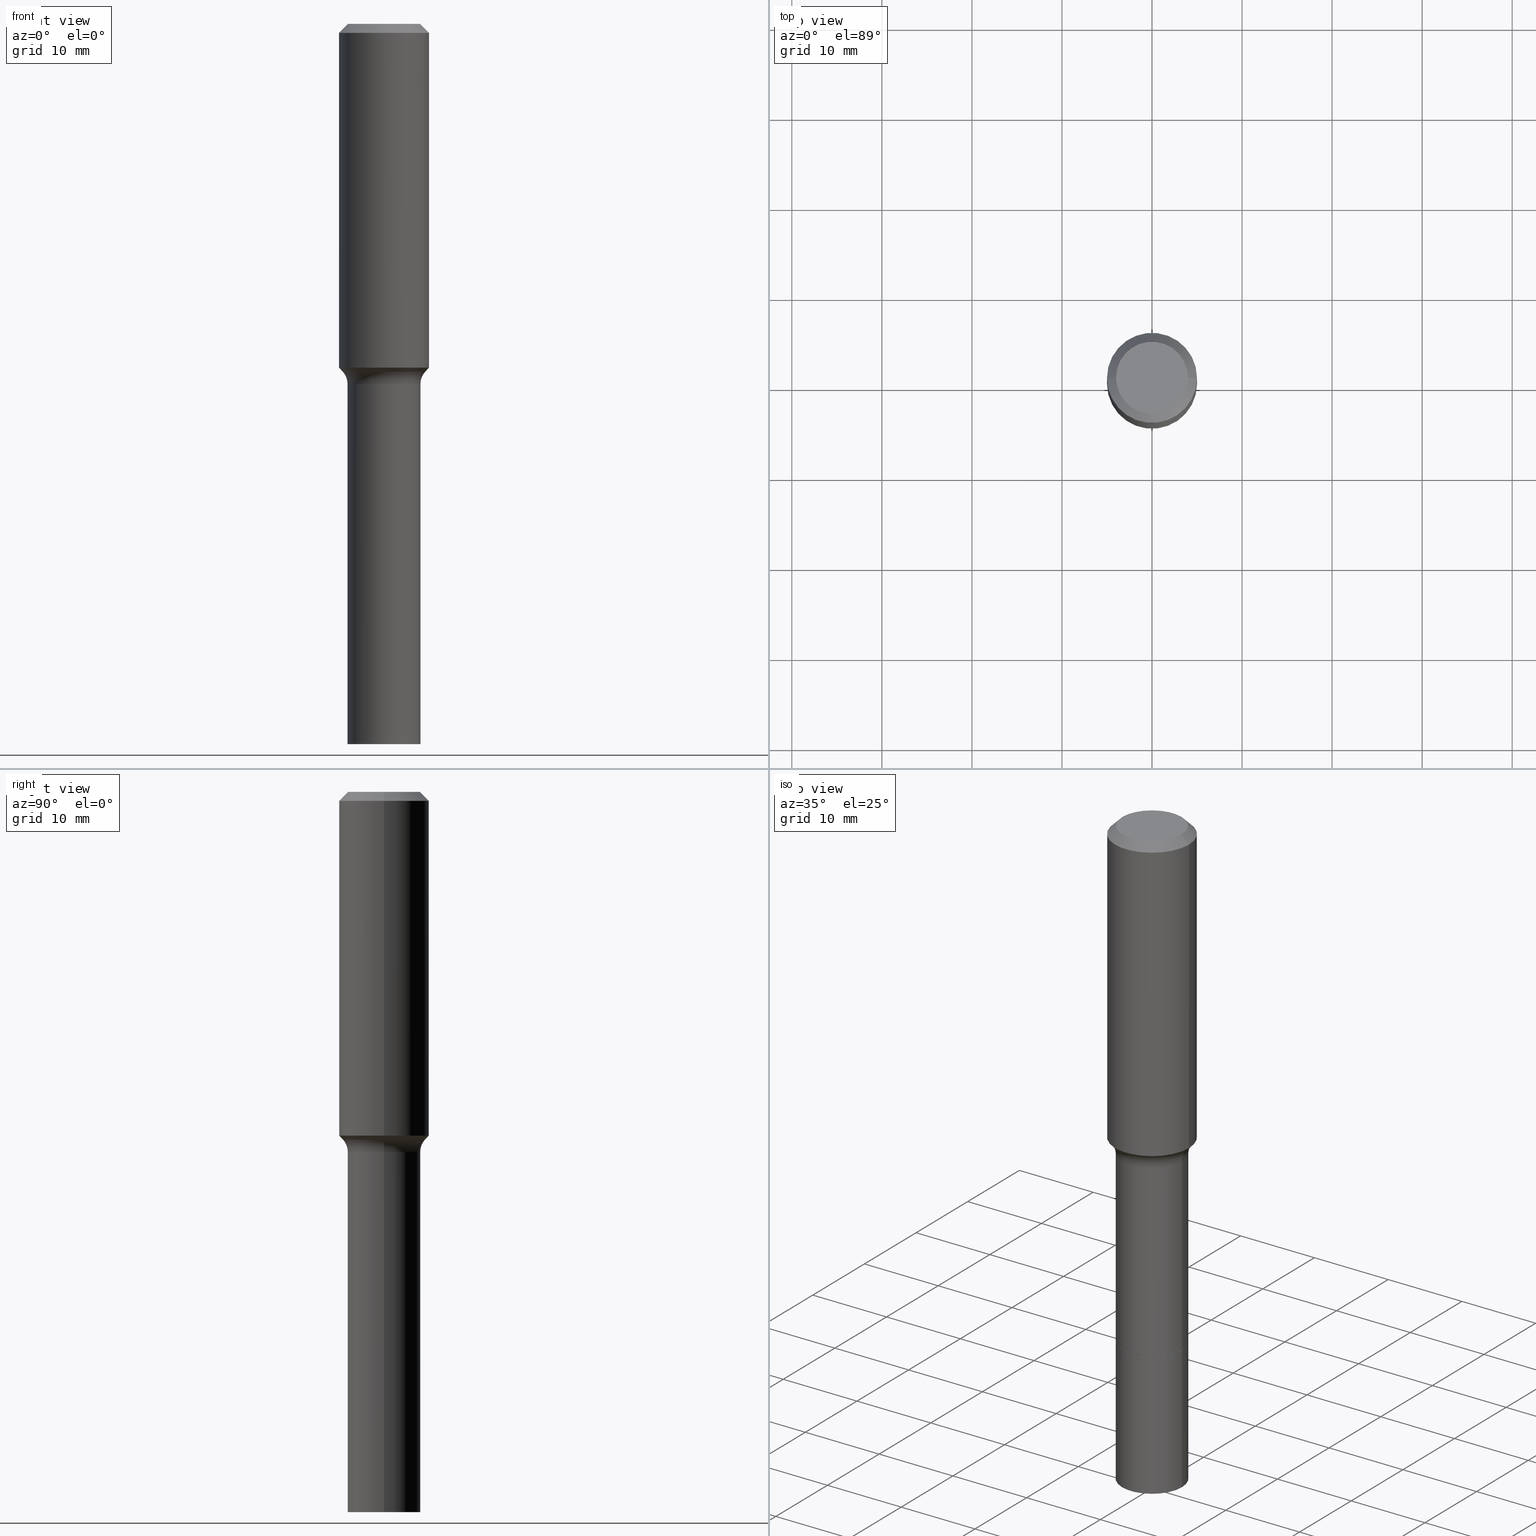
[diagram: canonical four-view strip — front | top / right | iso, engineering-drawing reading convention]
A machine part, canonical four-view strip (front | top / right | iso — engineering-drawing reading convention). The complete STEP part file that produces these views, byte-faithful:
ISO-10303-21;
HEADER;
FILE_DESCRIPTION (( 'STEP AP203' ),
    '1' );
FILE_NAME ('67128.STEP',
    '2025-04-01T15:28:36',
    ( '' ),
    ( '' ),
    'SwSTEP 2.0',
    'SolidWorks 2024',
    '' );
FILE_SCHEMA (( 'CONFIG_CONTROL_DESIGN' ));
ENDSEC;

DATA;
#1 = CARTESIAN_POINT ( 'NONE',  ( 0.1809417038704663749, -6.570700917324457435E-15, -1.520040131195000255 ) ) ;
#2 = CIRCLE ( 'NONE', #409, 0.1594500000000000361 ) ;
#3 = DIRECTION ( 'NONE',  ( 1.000000000000000000, -6.982962677686266711E-15, 0.000000000000000000 ) ) ;
#4 = EDGE_CURVE ( 'NONE', #18, #330, #482, .T. ) ;
#5 = LINE ( 'NONE', #479, #198 ) ;
#6 = DIRECTION ( 'NONE',  ( -2.445468806185136597E-29, 3.491481338843145583E-15, 1.000000000000000000 ) ) ;
#7 = APPLICATION_PROTOCOL_DEFINITION ( 'international standard', 'config_control_design', 1994, #406 ) ;
#8 = ORIENTED_EDGE ( 'NONE', *, *, #487, .T. ) ;
#9 = AXIS2_PLACEMENT_3D ( 'NONE', #69, #435, #391 ) ;
#10 = VECTOR ( 'NONE', #290, 39.37007874015748143 ) ;
#11 = DIRECTION ( 'NONE',  ( 0.6819983600624959230, -2.208861293262449376E-15, 0.7313537016191729023 ) ) ;
#12 = CIRCLE ( 'NONE', #248, 0.1809417038704664582 ) ;
#13 = CARTESIAN_POINT ( 'NONE',  ( 0.1594500000000000639, -9.790113674116178555E-15, -2.485100000000000087 ) ) ;
#14 = FACE_OUTER_BOUND ( 'NONE', #353, .T. ) ;
#15 = VERTEX_POINT ( 'NONE', #518 ) ;
#16 = LINE ( 'NONE', #374, #241 ) ;
#17 = CC_DESIGN_SECURITY_CLASSIFICATION ( #104, ( #268 ) ) ;
#18 = VERTEX_POINT ( 'NONE', #400 ) ;
#19 = CLOSED_SHELL ( 'NONE', ( #336, #244, #316, #380, #70, #223, #220, #356, #114, #378, #415, #367, #392, #464 ) ) ;
#20 = APPROVAL ( #421, 'UNSPECIFIED' ) ;
#21 = ORIENTED_EDGE ( 'NONE', *, *, #253, .F. ) ;
#22 = AXIS2_PLACEMENT_3D ( 'NONE', #446, #370, #46 ) ;
#23 = ORIENTED_EDGE ( 'NONE', *, *, #274, .F. ) ;
#24 = CC_DESIGN_APPROVAL ( #263, ( #104 ) ) ;
#25 = ORIENTED_EDGE ( 'NONE', *, *, #36, .F. ) ;
#26 = VERTEX_POINT ( 'NONE', #476 ) ;
#27 = EDGE_CURVE ( 'NONE', #89, #18, #254, .T. ) ;
#28 = CALENDAR_DATE ( 2025, 1, 4 ) ;
#29 = DIRECTION ( 'NONE',  ( -2.445468806185136877E-29, 3.491481338843145188E-15, 1.000000000000000000 ) ) ;
#30 = DIRECTION ( 'NONE',  ( -1.000000000000000000, 6.982962677686265922E-15, 0.000000000000000000 ) ) ;
#31 = PERSON_AND_ORGANIZATION_ROLE ( 'creator' ) ;
#32 = ORIENTED_EDGE ( 'NONE', *, *, #373, .T. ) ;
#33 = DIRECTION ( 'NONE',  ( 1.000000000000000000, -6.982962677686265133E-15, 0.000000000000000000 ) ) ;
#34 = TOROIDAL_SURFACE ( 'NONE', #393, 0.2394499999999999129, 0.07999999999999993228 ) ;
#35 = CIRCLE ( 'NONE', #9, 0.1574800000000000089 ) ;
#36 = EDGE_CURVE ( 'NONE', #330, #18, #56, .T. ) ;
#37 = CIRCLE ( 'NONE', #322, 0.07999999999999993228 ) ;
#38 = CARTESIAN_POINT ( 'NONE',  ( 3.850635182219116347E-29, -5.497686516142417553E-15, -1.574600000000000222 ) ) ;
#39 = DIRECTION ( 'NONE',  ( -2.445468806185136597E-29, 3.491481338843145583E-15, 1.000000000000000000 ) ) ;
#40 = DIRECTION ( 'NONE',  ( 1.000000000000000000, -6.982962677686267499E-15, 0.000000000000000000 ) ) ;
#41 = DIRECTION ( 'NONE',  ( -2.445468806185136597E-29, 3.491481338843145583E-15, 1.000000000000000000 ) ) ;
#42 = DIRECTION ( 'NONE',  ( -2.445468806185136597E-29, 3.491481338843145583E-15, 1.000000000000000000 ) ) ;
#43 = EDGE_CURVE ( 'NONE', #61, #251, #132, .T. ) ;
#44 = ORGANIZATION ( 'UNSPECIFIED', 'UNSPECIFIED', '' ) ;
#45 = CARTESIAN_POINT ( 'NONE',  ( 0.1809417038704664582, -6.570700917324458224E-15, -1.520040131195000255 ) ) ;
#46 = DIRECTION ( 'NONE',  ( -1.000000000000000000, 6.982962677686265922E-15, -4.876176775795935793E-29 ) ) ;
#47 = ORIENTED_EDGE ( 'NONE', *, *, #324, .F. ) ;
#48 = DIRECTION ( 'NONE',  ( -2.445468806185136597E-29, 3.491481338843145583E-15, 1.000000000000000000 ) ) ;
#49 = LOCAL_TIME ( 11, 28, 36.00000000000000000, #496 ) ;
#50 = DIRECTION ( 'NONE',  ( 1.000000000000000000, -6.982962677686269866E-15, 0.000000000000000000 ) ) ;
#51 = ORIENTED_EDGE ( 'NONE', *, *, #76, .F. ) ;
#52 = CARTESIAN_POINT ( 'NONE',  ( 0.000000000000000000, 0.000000000000000000, 0.000000000000000000 ) ) ;
#53 = DIRECTION ( 'NONE',  ( 1.000000000000000000, -6.982962677686266711E-15, 4.876176775795935793E-29 ) ) ;
#54 = VERTEX_POINT ( 'NONE', #266 ) ;
#55 = PERSON_AND_ORGANIZATION ( #180, #44 ) ;
#56 = CIRCLE ( 'NONE', #138, 0.1594499999999999251 ) ;
#57 = CONICAL_SURFACE ( 'NONE', #295, 0.1809417038704664582, 0.7504915783575581978 ) ;
#58 = ORIENTED_EDGE ( 'NONE', *, *, #274, .T. ) ;
#59 = ORIENTED_EDGE ( 'NONE', *, *, #118, .F. ) ;
#60 = EDGE_CURVE ( 'NONE', #89, #503, #12, .T. ) ;
#61 = VERTEX_POINT ( 'NONE', #434 ) ;
#62 = AXIS2_PLACEMENT_3D ( 'NONE', #414, #354, #352 ) ;
#63 = ORIENTED_EDGE ( 'NONE', *, *, #118, .T. ) ;
#64 = AXIS2_PLACEMENT_3D ( 'NONE', #362, #317, #448 ) ;
#65 = DIRECTION ( 'NONE',  ( -1.000000000000000000, 7.105427357601005014E-15, 0.000000000000000000 ) ) ;
#66 = CARTESIAN_POINT ( 'NONE',  ( 0.000000000000000000, 0.000000000000000000, 0.000000000000000000 ) ) ;
#67 = APPROVAL_STATUS ( 'not_yet_approved' ) ;
#68 = DIRECTION ( 'NONE',  ( 1.000000000000000000, -6.982962677686269866E-15, 0.000000000000000000 ) ) ;
#69 = CARTESIAN_POINT ( 'NONE',  ( -9.427742298522567634E-47, 1.346031739168368355E-32, 3.855188123715870730E-18 ) ) ;
#70 = ADVANCED_FACE ( 'NONE', ( #344 ), #34, .F. ) ;
#71 = PERSON_AND_ORGANIZATION ( #180, #44 ) ;
#72 = DIRECTION ( 'NONE',  ( -2.445468806185136597E-29, 3.491481338843145583E-15, 1.000000000000000000 ) ) ;
#73 = CARTESIAN_POINT ( 'NONE',  ( 9.627810689950945397E-31, -1.374596203102555315E-16, -0.03937000000000025896 ) ) ;
#74 = DIRECTION ( 'NONE',  ( 1.000000000000000000, -6.982962677686267499E-15, 0.000000000000000000 ) ) ;
#75 = DIRECTION ( 'NONE',  ( -0.6819983600624959230, 7.399397606724277110E-15, 0.7313537016191729023 ) ) ;
#76 = EDGE_CURVE ( 'NONE', #292, #330, #465, .T. ) ;
#77 = DIRECTION ( 'NONE',  ( 2.438088387897960049E-29, -3.491481338843145188E-15, -1.000000000000000000 ) ) ;
#78 = DESIGN_CONTEXT ( 'detailed design', #195, 'design' ) ;
#79 = CARTESIAN_POINT ( 'NONE',  ( 0.1589500000000000079, -9.788367933446756263E-15, -2.485600000000000254 ) ) ;
#80 = CC_DESIGN_PERSON_AND_ORGANIZATION_ASSIGNMENT ( #512, #328, ( #268 ) ) ;
#81 = DIRECTION ( 'NONE',  ( -0.7071067811865453523, 2.468850131082234184E-15, -0.7071067811865496822 ) ) ;
#82 = LINE ( 'NONE', #108, #286 ) ;
#83 = CC_DESIGN_PERSON_AND_ORGANIZATION_ASSIGNMENT ( #134, #429, ( #162 ) ) ;
#84 = CARTESIAN_POINT ( 'NONE',  ( 0.000000000000000000, 0.000000000000000000, 0.000000000000000000 ) ) ;
#85 = EDGE_LOOP ( 'NONE', ( #260, #298, #485, #462 ) ) ;
#86 = DIRECTION ( 'NONE',  ( -1.000000000000000000, 6.982962677686265922E-15, 0.000000000000000000 ) ) ;
#87 = DIRECTION ( 'NONE',  ( -2.445468806185136597E-29, 3.491481338843145583E-15, 1.000000000000000000 ) ) ;
#88 = ORIENTED_EDGE ( 'NONE', *, *, #412, .F. ) ;
#89 = VERTEX_POINT ( 'NONE', #96 ) ;
#90 = APPROVAL_DATE_TIME ( #127, #263 ) ;
#91 = VECTOR ( 'NONE', #143, 39.37007874015748143 ) ;
#92 = AXIS2_PLACEMENT_3D ( 'NONE', #287, #455, #211 ) ;
#93 = ORIENTED_EDGE ( 'NONE', *, *, #154, .F. ) ;
#94 = ORIENTED_EDGE ( 'NONE', *, *, #154, .T. ) ;
#95 = EDGE_LOOP ( 'NONE', ( #379, #294, #288, #398 ) ) ;
#96 = CARTESIAN_POINT ( 'NONE',  ( -0.1809417038704663749, -4.021523619547879417E-15, -1.520040131195000255 ) ) ;
#97 = CARTESIAN_POINT ( 'NONE',  ( 6.078457264653775760E-29, -8.678426015828524062E-15, -2.485600000000000254 ) ) ;
#98 = CC_DESIGN_DATE_AND_TIME_ASSIGNMENT ( #513, #359, ( #332 ) ) ;
#99 = CARTESIAN_POINT ( 'NONE',  ( 9.627810689950945397E-31, -1.374596203102555315E-16, -0.03937000000000025896 ) ) ;
#100 = DIRECTION ( 'NONE',  ( -2.445468806185136597E-29, 3.491481338843145583E-15, 1.000000000000000000 ) ) ;
#101 = CARTESIAN_POINT ( 'NONE',  ( -0.2394499999999999129, -3.796291935364858080E-15, -1.574600000000000222 ) ) ;
#102 = CARTESIAN_POINT ( 'NONE',  ( 6.078457264653775760E-29, -8.678426015828524062E-15, -2.485600000000000254 ) ) ;
#103 = EDGE_LOOP ( 'NONE', ( #337, #212, #94, #375 ) ) ;
#104 = SECURITY_CLASSIFICATION ( '', '', #210 ) ;
#105 = DIRECTION ( 'NONE',  ( 1.000000000000000000, -6.982962677686266711E-15, 4.876176775795935793E-29 ) ) ;
#106 = DIRECTION ( 'NONE',  ( -2.445468806185136597E-29, 3.491481338843145583E-15, 1.000000000000000000 ) ) ;
#107 = DIRECTION ( 'NONE',  ( -0.7071067811864509833, 7.493145998870005484E-15, 0.7071067811866440511 ) ) ;
#108 = CARTESIAN_POINT ( 'NONE',  ( -0.1968500000000001082, 1.398703375343757985E-15, -9.682923725166787881E-30 ) ) ;
#109 =( LENGTH_UNIT ( ) NAMED_UNIT ( * ) SI_UNIT ( $, .METRE. ) );
#110 = DIRECTION ( 'NONE',  ( -2.445468806185136597E-29, 3.491481338843145583E-15, 1.000000000000000000 ) ) ;
#111 = AXIS2_PLACEMENT_3D ( 'NONE', #514, #141, #307 ) ;
#112 = AXIS2_PLACEMENT_3D ( 'NONE', #267, #273, #33 ) ;
#113 = FACE_OUTER_BOUND ( 'NONE', #156, .T. ) ;
#114 = ADVANCED_FACE ( 'NONE', ( #304 ), #256, .T. ) ;
#115 = CARTESIAN_POINT ( 'NONE',  ( 0.000000000000000000, 0.000000000000000000, 0.000000000000000000 ) ) ;
#116 = DIRECTION ( 'NONE',  ( 2.445468806185136597E-29, -3.491481338843145583E-15, -1.000000000000000000 ) ) ;
#117 = DIRECTION ( 'NONE',  ( -2.445468806185136597E-29, 3.491481338843145583E-15, 1.000000000000000000 ) ) ;
#118 = EDGE_CURVE ( 'NONE', #54, #231, #347, .T. ) ;
#119 = AXIS2_PLACEMENT_3D ( 'NONE', #397, #39, #442 ) ;
#120 = AXIS2_PLACEMENT_3D ( 'NONE', #481, #6, #3 ) ;
#121 = DIRECTION ( 'NONE',  ( 1.000000000000000000, -6.982962677686266711E-15, 4.883557194083113462E-29 ) ) ;
#122 = ORIENTED_EDGE ( 'NONE', *, *, #76, .T. ) ;
#123 = CARTESIAN_POINT ( 'NONE',  ( -0.1594500000000000361, -7.545465623659043664E-15, -2.485600000000000254 ) ) ;
#124 = EDGE_LOOP ( 'NONE', ( #47, #377, #122, #381 ) ) ;
#125 = VECTOR ( 'NONE', #11, 39.37007874015748143 ) ;
#126 = ORIENTED_EDGE ( 'NONE', *, *, #501, .T. ) ;
#127 = DATE_AND_TIME ( #209, #467 ) ;
#128 = CIRCLE ( 'NONE', #436, 0.1594500000000000639 ) ;
#129 = EDGE_LOOP ( 'NONE', ( #21, #59 ) ) ;
#130 = ORIENTED_EDGE ( 'NONE', *, *, #192, .T. ) ;
#131 = APPROVAL_STATUS ( 'not_yet_approved' ) ;
#132 = LINE ( 'NONE', #136, #447 ) ;
#133 = CARTESIAN_POINT ( 'NONE',  ( 0.1594500000000000361, -9.791859414785599270E-15, -2.485600000000000254 ) ) ;
#134 = PERSON_AND_ORGANIZATION ( #180, #44 ) ;
#135 = CC_DESIGN_APPROVAL ( #289, ( #332 ) ) ;
#136 = CARTESIAN_POINT ( 'NONE',  ( 0.1968500000000001082, -1.374596203102542397E-15, 9.598753983154305062E-30 ) ) ;
#137 = CARTESIAN_POINT ( 'NONE',  ( 6.078457264653775760E-29, -8.678426015828524062E-15, -2.485600000000000254 ) ) ;
#138 = AXIS2_PLACEMENT_3D ( 'NONE', #38, #269, #437 ) ;
#139 = EDGE_CURVE ( 'NONE', #251, #186, #420, .T. ) ;
#140 = APPROVAL_ROLE ( '' ) ;
#141 = DIRECTION ( 'NONE',  ( -2.445468806185136597E-29, 3.491481338843145583E-15, 1.000000000000000000 ) ) ;
#142 = FACE_OUTER_BOUND ( 'NONE', #85, .T. ) ;
#143 = DIRECTION ( 'NONE',  ( -2.445468806185136877E-29, 3.491481338843145188E-15, 1.000000000000000000 ) ) ;
#144 = ADVANCED_FACE ( 'NONE', ( #227 ), #261, .T. ) ;
#145 = DIRECTION ( 'NONE',  ( 2.445468806185136597E-29, -3.491481338843145583E-15, -1.000000000000000000 ) ) ;
#146 = DIRECTION ( 'NONE',  ( -2.445468806185136597E-29, 3.491481338843145583E-15, 1.000000000000000000 ) ) ;
#147 = CARTESIAN_POINT ( 'NONE',  ( 7.702248551960706711E-29, -1.099676962482037231E-14, -3.149600000000000399 ) ) ;
#148 = AXIS2_PLACEMENT_3D ( 'NONE', #84, #278, #486 ) ;
#149 = PERSON_AND_ORGANIZATION ( #180, #44 ) ;
#150 = FACE_OUTER_BOUND ( 'NONE', #169, .T. ) ;
#151 = CC_DESIGN_DATE_AND_TIME_ASSIGNMENT ( #179, #425, ( #104 ) ) ;
#152 = CARTESIAN_POINT ( 'NONE',  ( 0.1594500000000000361, -9.791859414785599270E-15, -2.485600000000000254 ) ) ;
#153 = AXIS2_PLACEMENT_3D ( 'NONE', #407, #48, #484 ) ;
#154 = EDGE_CURVE ( 'NONE', #503, #330, #37, .T. ) ;
#155 = CARTESIAN_POINT ( 'NONE',  ( 0.1968500000000000250, -1.487948651171581601E-15, -0.03937000000000025896 ) ) ;
#156 = EDGE_LOOP ( 'NONE', ( #495, #327, #470, #499 ) ) ;
#157 = AXIS2_PLACEMENT_3D ( 'NONE', #99, #42, #441 ) ;
#158 = CIRCLE ( 'NONE', #111, 0.1968500000000001915 ) ;
#159 = CYLINDRICAL_SURFACE ( 'NONE', #219, 0.1594499999999999806 ) ;
#160 = ORIENTED_EDGE ( 'NONE', *, *, #324, .T. ) ;
#161 = LINE ( 'NONE', #155, #203 ) ;
#162 = PRODUCT ( '67128', '67128', '', ( #206 ) ) ;
#163 = EDGE_CURVE ( 'NONE', #61, #213, #158, .T. ) ;
#164 = FACE_OUTER_BOUND ( 'NONE', #103, .T. ) ;
#165 = ORIENTED_EDGE ( 'NONE', *, *, #277, .T. ) ;
#166 = LOCAL_TIME ( 11, 28, 36.00000000000000000, #229 ) ;
#167 = CALENDAR_DATE ( 2025, 1, 4 ) ;
#168 = LINE ( 'NONE', #123, #10 ) ;
#169 = EDGE_LOOP ( 'NONE', ( #384, #258, #204, #234 ) ) ;
#170 = APPROVAL_ROLE ( '' ) ;
#171 = EDGE_LOOP ( 'NONE', ( #58, #160, #25, #51 ) ) ;
#172 = EDGE_CURVE ( 'NONE', #460, #463, #461, .T. ) ;
#173 = PERSON_AND_ORGANIZATION_ROLE ( 'design_supplier' ) ;
#174 = ORIENTED_EDGE ( 'NONE', *, *, #192, .F. ) ;
#175 = AXIS2_PLACEMENT_3D ( 'NONE', #137, #194, #469 ) ;
#176 = ORIENTED_EDGE ( 'NONE', *, *, #214, .T. ) ;
#177 = EDGE_LOOP ( 'NONE', ( #456, #126, #366, #321 ) ) ;
#178 = DIRECTION ( 'NONE',  ( -2.445468806185136597E-29, 3.491481338843145583E-15, 1.000000000000000000 ) ) ;
#179 = DATE_AND_TIME ( #28, #474 ) ;
#180 = PERSON ( 'UNSPECIFIED', 'UNSPECIFIED', 'UNSPECIFIED', ('UNSPECIFIED'), ('UNSPECIFIED'), ('UNSPECIFIED') ) ;
#181 = VERTEX_POINT ( 'NONE', #152 ) ;
#182 = FACE_OUTER_BOUND ( 'NONE', #95, .T. ) ;
#183 = EDGE_CURVE ( 'NONE', #410, #186, #5, .T. ) ;
#184 = COORDINATED_UNIVERSAL_TIME_OFFSET ( 5, 0, .BEHIND. ) ;
#185 = APPROVAL_PERSON_ORGANIZATION ( #341, #289, #140 ) ;
#186 = VERTEX_POINT ( 'NONE', #318 ) ;
#187 = DIRECTION ( 'NONE',  ( -2.445468806185136877E-29, 3.491481338843145188E-15, 1.000000000000000000 ) ) ;
#188 = AXIS2_PLACEMENT_3D ( 'NONE', #430, #77, #264 ) ;
#189 = EDGE_CURVE ( 'NONE', #213, #186, #82, .T. ) ;
#190 = DIRECTION ( 'NONE',  ( 1.000000000000000000, -6.982962677686266711E-15, 4.883557194083113462E-29 ) ) ;
#191 = DIRECTION ( 'NONE',  ( -2.438088387897960049E-29, 3.491481338843145188E-15, 1.000000000000000000 ) ) ;
#192 = EDGE_CURVE ( 'NONE', #213, #61, #360, .T. ) ;
#193 = CARTESIAN_POINT ( 'NONE',  ( 0.1594499999999999806, -1.113433398957075208E-15, 7.775063869006620076E-30 ) ) ;
#194 = DIRECTION ( 'NONE',  ( -2.445468806185136597E-29, 3.491481338843145583E-15, 1.000000000000000000 ) ) ;
#195 = APPLICATION_CONTEXT ( 'configuration controlled 3d designs of mechanical parts and assemblies' ) ;
#196 = CARTESIAN_POINT ( 'NONE',  ( 0.2394499999999999129, -7.169756929314393625E-15, -1.574600000000000222 ) ) ;
#197 = CIRCLE ( 'NONE', #511, 0.1594500000000000361 ) ;
#198 = VECTOR ( 'NONE', #81, 39.37007874015748143 ) ;
#199 = PLANE ( 'NONE',  #22 ) ;
#200 =( CONVERSION_BASED_UNIT ( 'INCH', #208 ) LENGTH_UNIT ( ) NAMED_UNIT ( #217 ) );
#201 = CC_DESIGN_PERSON_AND_ORGANIZATION_ASSIGNMENT ( #388, #31, ( #332 ) ) ;
#202 = DIRECTION ( 'NONE',  ( -2.445468806185136877E-29, 3.491481338843145188E-15, 1.000000000000000000 ) ) ;
#203 = VECTOR ( 'NONE', #280, 39.37007874015748143 ) ;
#204 = ORIENTED_EDGE ( 'NONE', *, *, #139, .T. ) ;
#205 = FACE_OUTER_BOUND ( 'NONE', #124, .T. ) ;
#206 = MECHANICAL_CONTEXT ( 'NONE', #406, 'mechanical' ) ;
#207 = FACE_OUTER_BOUND ( 'NONE', #257, .T. ) ;
#208 = LENGTH_MEASURE_WITH_UNIT ( LENGTH_MEASURE( 0.02539999999999999897 ), #109 );
#209 = CALENDAR_DATE ( 2025, 1, 4 ) ;
#210 = SECURITY_CLASSIFICATION_LEVEL ( 'unclassified' ) ;
#211 = DIRECTION ( 'NONE',  ( 1.000000000000000000, -6.982962677686269866E-15, 0.000000000000000000 ) ) ;
#212 = ORIENTED_EDGE ( 'NONE', *, *, #452, .F. ) ;
#213 = VERTEX_POINT ( 'NONE', #365 ) ;
#214 = EDGE_CURVE ( 'NONE', #231, #292, #282, .T. ) ;
#215 = ORIENTED_EDGE ( 'NONE', *, *, #43, .F. ) ;
#216 = EDGE_LOOP ( 'NONE', ( #497, #130, #500, #371 ) ) ;
#217 = DIMENSIONAL_EXPONENTS ( 1.000000000000000000, 0.000000000000000000, 0.000000000000000000, 0.000000000000000000, 0.000000000000000000, 0.000000000000000000, 0.000000000000000000 ) ;
#218 = CIRCLE ( 'NONE', #119, 0.1968500000000000250 ) ;
#219 = AXIS2_PLACEMENT_3D ( 'NONE', #444, #323, #361 ) ;
#220 = ADVANCED_FACE ( 'NONE', ( #205 ), #159, .T. ) ;
#221 = ORIENTED_EDGE ( 'NONE', *, *, #60, .F. ) ;
#222 = ORIENTED_EDGE ( 'NONE', *, *, #27, .T. ) ;
#223 = ADVANCED_FACE ( 'NONE', ( #413 ), #242, .T. ) ;
#224 = FACE_OUTER_BOUND ( 'NONE', #177, .T. ) ;
#225 = AXIS2_PLACEMENT_3D ( 'NONE', #239, #405, #245 ) ;
#226 = DATE_AND_TIME ( #303, #166 ) ;
#227 = FACE_OUTER_BOUND ( 'NONE', #424, .T. ) ;
#228 = DIRECTION ( 'NONE',  ( 1.000000000000000000, -6.982962677686265922E-15, 4.876176775795935793E-29 ) ) ;
#229 = COORDINATED_UNIVERSAL_TIME_OFFSET ( 5, 0, .BEHIND. ) ;
#230 = CONICAL_SURFACE ( 'NONE', #92, 0.1589500000000000079, 0.7853981633973118326 ) ;
#231 = VERTEX_POINT ( 'NONE', #79 ) ;
#232 = LINE ( 'NONE', #504, #320 ) ;
#233 = CLOSED_SHELL ( 'NONE', ( #306, #144, #428, #297 ) ) ;
#234 = ORIENTED_EDGE ( 'NONE', *, *, #183, .F. ) ;
#235 = LINE ( 'NONE', #271, #445 ) ;
#236 = UNCERTAINTY_MEASURE_WITH_UNIT (LENGTH_MEASURE( 1.000000000000000082E-05 ), #200, 'distance_accuracy_value', 'NONE');
#237 = EDGE_LOOP ( 'NONE', ( #285, #63, #176, #88 ) ) ;
#238 = CYLINDRICAL_SURFACE ( 'NONE', #348, 0.1968500000000001082 ) ;
#239 = CARTESIAN_POINT ( 'NONE',  ( -9.427742298522567634E-47, 1.346031739168368355E-32, 3.855188123715870730E-18 ) ) ;
#240 = APPROVAL_PERSON_ORGANIZATION ( #149, #20, #170 ) ;
#241 = VECTOR ( 'NONE', #494, 39.37007874015748143 ) ;
#242 = CYLINDRICAL_SURFACE ( 'NONE', #148, 0.1594499999999999806 ) ;
#243 = DIRECTION ( 'NONE',  ( 0.7071067811864509833, -2.468850131081245741E-15, 0.7071067811866440511 ) ) ;
#244 = ADVANCED_FACE ( 'NONE', ( #150 ), #270, .T. ) ;
#245 = DIRECTION ( 'NONE',  ( 1.000000000000000000, -6.982962677686265922E-15, 4.876223630392693006E-29 ) ) ;
#246 = ORIENTED_EDGE ( 'NONE', *, *, #139, .F. ) ;
#247 = APPROVAL_PERSON_ORGANIZATION ( #71, #263, #300 ) ;
#248 = AXIS2_PLACEMENT_3D ( 'NONE', #272, #146, #40 ) ;
#249 = CYLINDRICAL_SURFACE ( 'NONE', #340, 0.1968500000000001082 ) ;
#250 = PLANE ( 'NONE',  #62 ) ;
#251 = VERTEX_POINT ( 'NONE', #449 ) ;
#252 = ORIENTED_EDGE ( 'NONE', *, *, #423, .T. ) ;
#253 = EDGE_CURVE ( 'NONE', #231, #54, #382, .T. ) ;
#254 = CIRCLE ( 'NONE', #475, 0.07999999999999993228 ) ;
#255 = AXIS2_PLACEMENT_3D ( 'NONE', #490, #87, #121 ) ;
#256 = CONICAL_SURFACE ( 'NONE', #396, 0.1809417038704664582, 0.7504915783575581978 ) ;
#257 = EDGE_LOOP ( 'NONE', ( #32, #458 ) ) ;
#258 = ORIENTED_EDGE ( 'NONE', *, *, #299, .T. ) ;
#259 = EDGE_CURVE ( 'NONE', #296, #410, #457, .T. ) ;
#260 = ORIENTED_EDGE ( 'NONE', *, *, #346, .F. ) ;
#261 = PLANE ( 'NONE',  #188 ) ;
#262 = DIRECTION ( 'NONE',  ( -2.445468806185136597E-29, 3.491481338843145583E-15, 1.000000000000000000 ) ) ;
#263 = APPROVAL ( #131, 'UNSPECIFIED' ) ;
#264 = DIRECTION ( 'NONE',  ( -1.000000000000000000, 6.982962677686265922E-15, -4.876176775795935793E-29 ) ) ;
#265 = LINE ( 'NONE', #133, #483 ) ;
#266 = CARTESIAN_POINT ( 'NONE',  ( -0.1589500000000000079, -7.546369110163733362E-15, -2.485600000000000254 ) ) ;
#267 = CARTESIAN_POINT ( 'NONE',  ( 6.078457264653775760E-29, -8.678426015828524062E-15, -2.485600000000000254 ) ) ;
#268 = PRODUCT_DEFINITION_FORMATION_WITH_SPECIFIED_SOURCE ( 'ANY', '', #162, .NOT_KNOWN. ) ;
#269 = DIRECTION ( 'NONE',  ( -2.445468806185136597E-29, 3.491481338843145583E-15, 1.000000000000000000 ) ) ;
#270 = CONICAL_SURFACE ( 'NONE', #411, 0.1968500000000000250, 0.7853981633974452814 ) ;
#271 = CARTESIAN_POINT ( 'NONE',  ( -0.1589500000000000079, -7.549018337337845352E-15, -2.485600000000000254 ) ) ;
#272 = CARTESIAN_POINT ( 'NONE',  ( 3.717210724986936016E-29, -5.307191752360030282E-15, -1.520040131195000255 ) ) ;
#273 = DIRECTION ( 'NONE',  ( -2.445468806185136597E-29, 3.491481338843145583E-15, 1.000000000000000000 ) ) ;
#274 = EDGE_CURVE ( 'NONE', #292, #15, #291, .T. ) ;
#275 = CARTESIAN_POINT ( 'NONE',  ( 0.1589500000000000079, -9.788367933446756263E-15, -2.485600000000000254 ) ) ;
#276 = ORIENTED_EDGE ( 'NONE', *, *, #60, .T. ) ;
#277 = EDGE_CURVE ( 'NONE', #503, #61, #368, .T. ) ;
#278 = DIRECTION ( 'NONE',  ( -2.445468806185136597E-29, 3.491481338843145583E-15, 1.000000000000000000 ) ) ;
#279 = AXIS2_PLACEMENT_3D ( 'NONE', #433, #191, #228 ) ;
#280 = DIRECTION ( 'NONE',  ( 0.7071067811865453523, -7.319954787623248157E-15, -0.7071067811865496822 ) ) ;
#281 = PRODUCT_DEFINITION_SHAPE ( 'NONE', 'NONE',  #332 ) ;
#282 = LINE ( 'NONE', #275, #454 ) ;
#283 = DIRECTION ( 'NONE',  ( 1.000000000000000000, -6.982962677686265133E-15, 0.000000000000000000 ) ) ;
#284 =( NAMED_UNIT ( * ) SI_UNIT ( $, .STERADIAN. ) SOLID_ANGLE_UNIT ( ) );
#285 = ORIENTED_EDGE ( 'NONE', *, *, #423, .F. ) ;
#286 = VECTOR ( 'NONE', #202, 39.37007874015748143 ) ;
#287 = CARTESIAN_POINT ( 'NONE',  ( 6.078457264653775760E-29, -8.678426015828524062E-15, -2.485600000000000254 ) ) ;
#288 = ORIENTED_EDGE ( 'NONE', *, *, #183, .T. ) ;
#289 = APPROVAL ( #67, 'UNSPECIFIED' ) ;
#290 = DIRECTION ( 'NONE',  ( -2.445468806185136877E-29, 3.491481338843145188E-15, 1.000000000000000000 ) ) ;
#291 = CIRCLE ( 'NONE', #364, 0.1594500000000000639 ) ;
#292 = VERTEX_POINT ( 'NONE', #13 ) ;
#293 = PERSON_AND_ORGANIZATION_ROLE ( 'classification_officer' ) ;
#294 = ORIENTED_EDGE ( 'NONE', *, *, #487, .F. ) ;
#295 = AXIS2_PLACEMENT_3D ( 'NONE', #471, #466, #301 ) ;
#296 = VERTEX_POINT ( 'NONE', #408 ) ;
#297 = ADVANCED_FACE ( 'NONE', ( #207 ), #199, .F. ) ;
#298 = ORIENTED_EDGE ( 'NONE', *, *, #172, .T. ) ;
#299 = EDGE_CURVE ( 'NONE', #296, #251, #161, .T. ) ;
#300 = APPROVAL_ROLE ( '' ) ;
#301 = DIRECTION ( 'NONE',  ( 1.000000000000000000, -6.982962677686267499E-15, 0.000000000000000000 ) ) ;
#302 = ADVANCED_BREP_SHAPE_REPRESENTATION ( '67128', ( #387, #390, #491 ), #427 ) ;
#303 = CALENDAR_DATE ( 2025, 1, 4 ) ;
#304 = FACE_OUTER_BOUND ( 'NONE', #339, .T. ) ;
#305 = DIRECTION ( 'NONE',  ( -2.445468806185136597E-29, 3.491481338843145583E-15, 1.000000000000000000 ) ) ;
#306 = ADVANCED_FACE ( 'NONE', ( #113 ), #326, .T. ) ;
#307 = DIRECTION ( 'NONE',  ( 1.000000000000000000, -6.982962677686266711E-15, 0.000000000000000000 ) ) ;
#308 = FACE_OUTER_BOUND ( 'NONE', #237, .T. ) ;
#309 = COORDINATED_UNIVERSAL_TIME_OFFSET ( 5, 0, .BEHIND. ) ;
#310 = DIRECTION ( 'NONE',  ( -2.445468806185136597E-29, 3.491481338843145583E-15, 1.000000000000000000 ) ) ;
#311 = CYLINDRICAL_SURFACE ( 'NONE', #112, 0.1594500000000000361 ) ;
#312 = AXIS2_PLACEMENT_3D ( 'NONE', #73, #145, #30 ) ;
#313 = APPLICATION_PROTOCOL_DEFINITION ( 'international standard', 'config_control_design', 1994, #195 ) ;
#314 = DIRECTION ( 'NONE',  ( 1.000000000000000000, -6.982962677686269866E-15, 0.000000000000000000 ) ) ;
#315 = FACE_OUTER_BOUND ( 'NONE', #216, .T. ) ;
#316 = ADVANCED_FACE ( 'NONE', ( #453 ), #249, .T. ) ;
#317 = DIRECTION ( 'NONE',  ( -2.445468806185136597E-29, 3.491481338843145583E-15, 1.000000000000000000 ) ) ;
#318 = CARTESIAN_POINT ( 'NONE',  ( -0.1968500000000000250, -1.293840745044226107E-15, -0.03937000000000025896 ) ) ;
#319 = CARTESIAN_POINT ( 'NONE',  ( 9.627810689950945397E-31, -1.374596203102555315E-16, -0.03937000000000025896 ) ) ;
#320 = VECTOR ( 'NONE', #75, 39.37007874015748143 ) ;
#321 = ORIENTED_EDGE ( 'NONE', *, *, #277, .F. ) ;
#322 = AXIS2_PLACEMENT_3D ( 'NONE', #196, #432, #350 ) ;
#323 = DIRECTION ( 'NONE',  ( -2.445468806185136597E-29, 3.491481338843145583E-15, 1.000000000000000000 ) ) ;
#324 = EDGE_CURVE ( 'NONE', #15, #18, #16, .T. ) ;
#325 = ORIENTED_EDGE ( 'NONE', *, *, #501, .F. ) ;
#326 = CYLINDRICAL_SURFACE ( 'NONE', #510, 0.1594500000000000361 ) ;
#327 = ORIENTED_EDGE ( 'NONE', *, *, #346, .T. ) ;
#328 = PERSON_AND_ORGANIZATION_ROLE ( 'creator' ) ;
#329 = DIRECTION ( 'NONE',  ( -2.445468806185136597E-29, 3.491481338843145583E-15, 1.000000000000000000 ) ) ;
#330 = VERTEX_POINT ( 'NONE', #333 ) ;
#331 = CIRCLE ( 'NONE', #369, 0.1594500000000000361 ) ;
#332 = PRODUCT_DEFINITION ( 'UNKNOWN', '', #268, #78 ) ;
#333 = CARTESIAN_POINT ( 'NONE',  ( 0.1594499999999999251, -6.611119915099492761E-15, -1.574600000000000222 ) ) ;
#334 = EDGE_LOOP ( 'NONE', ( #472, #342, #246, #215 ) ) ;
#335 = ORIENTED_EDGE ( 'NONE', *, *, #214, .F. ) ;
#336 = ADVANCED_FACE ( 'NONE', ( #372 ), #230, .T. ) ;
#337 = ORIENTED_EDGE ( 'NONE', *, *, #27, .F. ) ;
#338 = CC_DESIGN_APPROVAL ( #20, ( #268 ) ) ;
#339 = EDGE_LOOP ( 'NONE', ( #325, #276, #165, #174 ) ) ;
#340 = AXIS2_PLACEMENT_3D ( 'NONE', #52, #329, #53 ) ;
#341 = PERSON_AND_ORGANIZATION ( #180, #44 ) ;
#342 = ORIENTED_EDGE ( 'NONE', *, *, #189, .T. ) ;
#343 = DIRECTION ( 'NONE',  ( 1.000000000000000000, -6.982962677686265133E-15, 0.000000000000000000 ) ) ;
#344 = FACE_OUTER_BOUND ( 'NONE', #383, .T. ) ;
#345 = DIRECTION ( 'NONE',  ( 1.000000000000000000, -6.982962677686267499E-15, 0.000000000000000000 ) ) ;
#346 = EDGE_CURVE ( 'NONE', #460, #26, #168, .T. ) ;
#347 = CIRCLE ( 'NONE', #351, 0.1589500000000000079 ) ;
#348 = AXIS2_PLACEMENT_3D ( 'NONE', #66, #100, #105 ) ;
#349 = CALENDAR_DATE ( 2025, 1, 4 ) ;
#350 = DIRECTION ( 'NONE',  ( 1.000000000000000000, -6.982962677686265133E-15, 0.000000000000000000 ) ) ;
#351 = AXIS2_PLACEMENT_3D ( 'NONE', #355, #72, #314 ) ;
#352 = DIRECTION ( 'NONE',  ( -1.000000000000000000, 6.982962677686265922E-15, -4.876176775795935793E-29 ) ) ;
#353 = EDGE_LOOP ( 'NONE', ( #8, #418 ) ) ;
#354 = DIRECTION ( 'NONE',  ( 2.438088387897960049E-29, -3.491481338843145188E-15, -1.000000000000000000 ) ) ;
#355 = CARTESIAN_POINT ( 'NONE',  ( 6.078457264653775760E-29, -8.678426015828524062E-15, -2.485600000000000254 ) ) ;
#356 = ADVANCED_FACE ( 'NONE', ( #164 ), #376, .F. ) ;
#357 = FACE_OUTER_BOUND ( 'NONE', #129, .T. ) ;
#358 = CONICAL_SURFACE ( 'NONE', #312, 0.1968500000000000250, 0.7853981633974452814 ) ;
#359 = DATE_TIME_ROLE ( 'creation_date' ) ;
#360 = CIRCLE ( 'NONE', #120, 0.1968500000000001915 ) ;
#361 = DIRECTION ( 'NONE',  ( 1.000000000000000000, -6.982962677686267499E-15, 4.876176775795936914E-29 ) ) ;
#362 = CARTESIAN_POINT ( 'NONE',  ( 7.702248551960706711E-29, -1.099676962482037231E-14, -3.149600000000000399 ) ) ;
#363 = DIRECTION ( 'NONE',  ( 1.000000000000000000, 0.000000000000000000, 0.000000000000000000 ) ) ;
#364 = AXIS2_PLACEMENT_3D ( 'NONE', #403, #110, #50 ) ;
#365 = CARTESIAN_POINT ( 'NONE',  ( -0.1968500000000001915, -3.848925245121954815E-15, -1.502980572195881548 ) ) ;
#366 = ORIENTED_EDGE ( 'NONE', *, *, #163, .F. ) ;
#367 = ADVANCED_FACE ( 'NONE', ( #14 ), #250, .F. ) ;
#368 = LINE ( 'NONE', #45, #125 ) ;
#369 = AXIS2_PLACEMENT_3D ( 'NONE', #102, #431, #515 ) ;
#370 = DIRECTION ( 'NONE',  ( 2.438088387897960049E-29, -3.491481338843145188E-15, -1.000000000000000000 ) ) ;
#371 = ORIENTED_EDGE ( 'NONE', *, *, #505, .F. ) ;
#372 = FACE_OUTER_BOUND ( 'NONE', #426, .T. ) ;
#373 = EDGE_CURVE ( 'NONE', #181, #26, #331, .T. ) ;
#374 = CARTESIAN_POINT ( 'NONE',  ( -0.1594499999999999806, 1.132960392169479609E-15, -7.843242001411446535E-30 ) ) ;
#375 = ORIENTED_EDGE ( 'NONE', *, *, #36, .T. ) ;
#376 = TOROIDAL_SURFACE ( 'NONE', #255, 0.2394499999999999129, 0.07999999999999993228 ) ;
#377 = ORIENTED_EDGE ( 'NONE', *, *, #412, .T. ) ;
#378 = ADVANCED_FACE ( 'NONE', ( #315 ), #238, .T. ) ;
#379 = ORIENTED_EDGE ( 'NONE', *, *, #299, .F. ) ;
#380 = ADVANCED_FACE ( 'NONE', ( #224 ), #57, .T. ) ;
#381 = ORIENTED_EDGE ( 'NONE', *, *, #4, .F. ) ;
#382 = CIRCLE ( 'NONE', #153, 0.1589500000000000079 ) ;
#383 = EDGE_LOOP ( 'NONE', ( #221, #222, #489, #93 ) ) ;
#384 = ORIENTED_EDGE ( 'NONE', *, *, #259, .F. ) ;
#385 = CARTESIAN_POINT ( 'NONE',  ( 3.717210724986936016E-29, -5.307191752360030282E-15, -1.520040131195000255 ) ) ;
#386 = EDGE_CURVE ( 'NONE', #463, #460, #2, .T. ) ;
#387 = MANIFOLD_SOLID_BREP ( 'Body-Move/Copy2[1]', #233 ) ;
#388 = PERSON_AND_ORGANIZATION ( #180, #44 ) ;
#389 = CARTESIAN_POINT ( 'NONE',  ( 3.850635182219116347E-29, -5.497686516142417553E-15, -1.574600000000000222 ) ) ;
#390 = MANIFOLD_SOLID_BREP ( 'Body-Move/Copy2[2]', #19 ) ;
#391 = DIRECTION ( 'NONE',  ( 1.000000000000000000, -6.982962677686265922E-15, 4.876223630392693006E-29 ) ) ;
#392 = ADVANCED_FACE ( 'NONE', ( #357 ), #439, .F. ) ;
#393 = AXIS2_PLACEMENT_3D ( 'NONE', #508, #106, #190 ) ;
#394 = AXIS2_PLACEMENT_3D ( 'NONE', #385, #41, #345 ) ;
#395 = DIRECTION ( 'NONE',  ( -2.445468806185136597E-29, 3.491481338843145583E-15, 1.000000000000000000 ) ) ;
#396 = AXIS2_PLACEMENT_3D ( 'NONE', #468, #310, #74 ) ;
#397 = CARTESIAN_POINT ( 'NONE',  ( 9.627810689950945397E-31, -1.374596203102555315E-16, -0.03937000000000025896 ) ) ;
#398 = ORIENTED_EDGE ( 'NONE', *, *, #505, .T. ) ;
#399 = DIRECTION ( 'NONE',  ( 1.000000000000000000, -6.982962677686265133E-15, 0.000000000000000000 ) ) ;
#400 = CARTESIAN_POINT ( 'NONE',  ( -0.1594499999999999251, -5.954223003481279658E-15, -1.574600000000000222 ) ) ;
#401 = CARTESIAN_POINT ( 'NONE',  ( -0.1574800000000000089, 1.168406772637159618E-15, 3.855188123707939751E-18 ) ) ;
#402 = CONICAL_SURFACE ( 'NONE', #175, 0.1589500000000000079, 0.7853981633973118326 ) ;
#403 = CARTESIAN_POINT ( 'NONE',  ( 6.077234530250682958E-29, -8.676680275159101770E-15, -2.485100000000000087 ) ) ;
#404 = DIRECTION ( 'NONE',  ( 0.000000000000000000, 0.000000000000000000, 1.000000000000000000 ) ) ;
#405 = DIRECTION ( 'NONE',  ( -2.445468806185136597E-29, 3.491481338843145583E-15, 1.000000000000000000 ) ) ;
#406 = APPLICATION_CONTEXT ( 'configuration controlled 3d designs of mechanical parts and assemblies' ) ;
#407 = CARTESIAN_POINT ( 'NONE',  ( 6.078457264653775760E-29, -8.678426015828524062E-15, -2.485600000000000254 ) ) ;
#408 = CARTESIAN_POINT ( 'NONE',  ( 0.1574800000000000089, -1.284169937930321189E-15, 3.855188123724205385E-18 ) ) ;
#409 = AXIS2_PLACEMENT_3D ( 'NONE', #147, #262, #343 ) ;
#410 = VERTEX_POINT ( 'NONE', #401 ) ;
#411 = AXIS2_PLACEMENT_3D ( 'NONE', #319, #116, #86 ) ;
#412 = EDGE_CURVE ( 'NONE', #15, #292, #128, .T. ) ;
#413 = FACE_OUTER_BOUND ( 'NONE', #171, .T. ) ;
#414 = CARTESIAN_POINT ( 'NONE',  ( -4.713871149261283817E-47, 6.730158695841841775E-33, 1.927594061857935365E-18 ) ) ;
#415 = ADVANCED_FACE ( 'NONE', ( #182 ), #358, .T. ) ;
#416 = ORIENTED_EDGE ( 'NONE', *, *, #172, .F. ) ;
#417 = PERSON_AND_ORGANIZATION ( #180, #44 ) ;
#418 = ORIENTED_EDGE ( 'NONE', *, *, #259, .T. ) ;
#419 = CIRCLE ( 'NONE', #394, 0.1809417038704664582 ) ;
#420 = CIRCLE ( 'NONE', #157, 0.1968500000000000250 ) ;
#421 = APPROVAL_STATUS ( 'not_yet_approved' ) ;
#422 = ORIENTED_EDGE ( 'NONE', *, *, #386, .F. ) ;
#423 = EDGE_CURVE ( 'NONE', #54, #15, #235, .T. ) ;
#424 = EDGE_LOOP ( 'NONE', ( #422, #416 ) ) ;
#425 = DATE_TIME_ROLE ( 'classification_date' ) ;
#426 = EDGE_LOOP ( 'NONE', ( #492, #252, #23, #335 ) ) ;
#427 =( GEOMETRIC_REPRESENTATION_CONTEXT ( 3 ) GLOBAL_UNCERTAINTY_ASSIGNED_CONTEXT ( ( #236 ) ) GLOBAL_UNIT_ASSIGNED_CONTEXT ( ( #200, #450, #284 ) ) REPRESENTATION_CONTEXT ( 'NONE', 'WORKASPACE' ) );
#428 = ADVANCED_FACE ( 'NONE', ( #142 ), #311, .T. ) ;
#429 = PERSON_AND_ORGANIZATION_ROLE ( 'design_owner' ) ;
#430 = CARTESIAN_POINT ( 'NONE',  ( 7.702248551960706711E-29, -1.099676962482037231E-14, -3.149600000000000399 ) ) ;
#431 = DIRECTION ( 'NONE',  ( -2.445468806185136597E-29, 3.491481338843145583E-15, 1.000000000000000000 ) ) ;
#432 = DIRECTION ( 'NONE',  ( -6.982962677686266711E-15, -1.000000000000000000, 3.491481338843145583E-15 ) ) ;
#433 = CARTESIAN_POINT ( 'NONE',  ( 6.078457264653775760E-29, -8.678426015828524062E-15, -2.485600000000000254 ) ) ;
#434 = CARTESIAN_POINT ( 'NONE',  ( 0.1968500000000001915, -6.622224823568255789E-15, -1.502980572195881548 ) ) ;
#435 = DIRECTION ( 'NONE',  ( -2.445468806185136597E-29, 3.491481338843145583E-15, 1.000000000000000000 ) ) ;
#436 = AXIS2_PLACEMENT_3D ( 'NONE', #517, #178, #477 ) ;
#437 = DIRECTION ( 'NONE',  ( 1.000000000000000000, -6.982962677686269866E-15, 0.000000000000000000 ) ) ;
#438 = AXIS2_PLACEMENT_3D ( 'NONE', #389, #395, #68 ) ;
#439 = PLANE ( 'NONE',  #279 ) ;
#440 = EDGE_CURVE ( 'NONE', #26, #181, #197, .T. ) ;
#441 = DIRECTION ( 'NONE',  ( 1.000000000000000000, -6.982962677686265922E-15, 0.000000000000000000 ) ) ;
#442 = DIRECTION ( 'NONE',  ( 1.000000000000000000, -6.982962677686265922E-15, 0.000000000000000000 ) ) ;
#443 = CC_DESIGN_PERSON_AND_ORGANIZATION_ASSIGNMENT ( #55, #293, ( #104 ) ) ;
#444 = CARTESIAN_POINT ( 'NONE',  ( 0.000000000000000000, 0.000000000000000000, 0.000000000000000000 ) ) ;
#445 = VECTOR ( 'NONE', #107, 39.37007874015748143 ) ;
#446 = CARTESIAN_POINT ( 'NONE',  ( 6.078457264653775760E-29, -8.678426015828524062E-15, -2.485600000000000254 ) ) ;
#447 = VECTOR ( 'NONE', #29, 39.37007874015748143 ) ;
#448 = DIRECTION ( 'NONE',  ( 1.000000000000000000, -6.982962677686265133E-15, 0.000000000000000000 ) ) ;
#449 = CARTESIAN_POINT ( 'NONE',  ( 0.1968500000000000250, -1.512055823412797189E-15, -0.03937000000000025896 ) ) ;
#450 =( NAMED_UNIT ( * ) PLANE_ANGLE_UNIT ( ) SI_UNIT ( $, .RADIAN. ) );
#451 = CC_DESIGN_PERSON_AND_ORGANIZATION_ASSIGNMENT ( #417, #173, ( #268 ) ) ;
#452 = EDGE_CURVE ( 'NONE', #503, #89, #419, .T. ) ;
#453 = FACE_OUTER_BOUND ( 'NONE', #334, .T. ) ;
#454 = VECTOR ( 'NONE', #243, 39.37007874015748143 ) ;
#455 = DIRECTION ( 'NONE',  ( -2.445468806185136597E-29, 3.491481338843145583E-15, 1.000000000000000000 ) ) ;
#456 = ORIENTED_EDGE ( 'NONE', *, *, #452, .T. ) ;
#457 = CIRCLE ( 'NONE', #225, 0.1574800000000000089 ) ;
#458 = ORIENTED_EDGE ( 'NONE', *, *, #440, .T. ) ;
#459 = DATE_AND_TIME ( #167, #49 ) ;
#460 = VERTEX_POINT ( 'NONE', #509 ) ;
#461 = CIRCLE ( 'NONE', #64, 0.1594500000000000361 ) ;
#462 = ORIENTED_EDGE ( 'NONE', *, *, #440, .F. ) ;
#463 = VERTEX_POINT ( 'NONE', #473 ) ;
#464 = ADVANCED_FACE ( 'NONE', ( #308 ), #402, .T. ) ;
#465 = LINE ( 'NONE', #193, #91 ) ;
#466 = DIRECTION ( 'NONE',  ( -2.445468806185136597E-29, 3.491481338843145583E-15, 1.000000000000000000 ) ) ;
#467 = LOCAL_TIME ( 11, 28, 36.00000000000000000, #506 ) ;
#468 = CARTESIAN_POINT ( 'NONE',  ( 3.717210724986936016E-29, -5.307191752360030282E-15, -1.520040131195000255 ) ) ;
#469 = DIRECTION ( 'NONE',  ( 1.000000000000000000, -6.982962677686269866E-15, 0.000000000000000000 ) ) ;
#470 = ORIENTED_EDGE ( 'NONE', *, *, #373, .F. ) ;
#471 = CARTESIAN_POINT ( 'NONE',  ( 3.717210724986936016E-29, -5.307191752360030282E-15, -1.520040131195000255 ) ) ;
#472 = ORIENTED_EDGE ( 'NONE', *, *, #163, .T. ) ;
#473 = CARTESIAN_POINT ( 'NONE',  ( 0.1594500000000000361, -1.211020302377744752E-14, -3.149600000000000399 ) ) ;
#474 = LOCAL_TIME ( 11, 28, 36.00000000000000000, #309 ) ;
#475 = AXIS2_PLACEMENT_3D ( 'NONE', #101, #516, #65 ) ;
#476 = CARTESIAN_POINT ( 'NONE',  ( -0.1594500000000000361, -8.704637428154966210E-15, -2.485600000000000254 ) ) ;
#477 = DIRECTION ( 'NONE',  ( 1.000000000000000000, -6.982962677686269866E-15, 0.000000000000000000 ) ) ;
#478 = PRODUCT_RELATED_PRODUCT_CATEGORY ( 'detail', '', ( #162 ) ) ;
#479 = CARTESIAN_POINT ( 'NONE',  ( -0.1968500000000000250, 1.237136582792286225E-15, -0.03937000000000025896 ) ) ;
#480 = EDGE_CURVE ( 'NONE', #463, #181, #265, .T. ) ;
#481 = CARTESIAN_POINT ( 'NONE',  ( 3.675492105607316008E-29, -5.247628620465713392E-15, -1.502980572195881548 ) ) ;
#482 = CIRCLE ( 'NONE', #438, 0.1594499999999999251 ) ;
#483 = VECTOR ( 'NONE', #187, 39.37007874015748143 ) ;
#484 = DIRECTION ( 'NONE',  ( 1.000000000000000000, -6.982962677686269866E-15, 0.000000000000000000 ) ) ;
#485 = ORIENTED_EDGE ( 'NONE', *, *, #480, .T. ) ;
#486 = DIRECTION ( 'NONE',  ( 1.000000000000000000, -6.982962677686267499E-15, 4.876176775795936914E-29 ) ) ;
#487 = EDGE_CURVE ( 'NONE', #410, #296, #35, .T. ) ;
#488 = CARTESIAN_POINT ( 'NONE',  ( 6.078457264653775760E-29, -8.678426015828524062E-15, -2.485600000000000254 ) ) ;
#489 = ORIENTED_EDGE ( 'NONE', *, *, #4, .T. ) ;
#490 = CARTESIAN_POINT ( 'NONE',  ( 3.850635182219116347E-29, -5.497686516142417553E-15, -1.574600000000000222 ) ) ;
#491 = AXIS2_PLACEMENT_3D ( 'NONE', #115, #404, #363 ) ;
#492 = ORIENTED_EDGE ( 'NONE', *, *, #253, .T. ) ;
#493 = SHAPE_DEFINITION_REPRESENTATION ( #281, #302 ) ;
#494 = DIRECTION ( 'NONE',  ( -2.445468806185136877E-29, 3.491481338843145188E-15, 1.000000000000000000 ) ) ;
#495 = ORIENTED_EDGE ( 'NONE', *, *, #386, .T. ) ;
#496 = COORDINATED_UNIVERSAL_TIME_OFFSET ( 5, 0, .BEHIND. ) ;
#497 = ORIENTED_EDGE ( 'NONE', *, *, #189, .F. ) ;
#498 = LOCAL_TIME ( 11, 28, 36.00000000000000000, #184 ) ;
#499 = ORIENTED_EDGE ( 'NONE', *, *, #480, .F. ) ;
#500 = ORIENTED_EDGE ( 'NONE', *, *, #43, .T. ) ;
#501 = EDGE_CURVE ( 'NONE', #89, #213, #232, .T. ) ;
#502 = APPROVAL_DATE_TIME ( #226, #289 ) ;
#503 = VERTEX_POINT ( 'NONE', #1 ) ;
#504 = CARTESIAN_POINT ( 'NONE',  ( -0.1809417038704664582, -4.021523619547878628E-15, -1.520040131195000255 ) ) ;
#505 = EDGE_CURVE ( 'NONE', #186, #251, #218, .T. ) ;
#506 = COORDINATED_UNIVERSAL_TIME_OFFSET ( 5, 0, .BEHIND. ) ;
#507 = APPROVAL_DATE_TIME ( #459, #20 ) ;
#508 = CARTESIAN_POINT ( 'NONE',  ( 3.850635182219116347E-29, -5.497686516142417553E-15, -1.574600000000000222 ) ) ;
#509 = CARTESIAN_POINT ( 'NONE',  ( -0.1594500000000000361, -8.704637428154966210E-15, -3.149600000000000399 ) ) ;
#510 = AXIS2_PLACEMENT_3D ( 'NONE', #488, #117, #283 ) ;
#511 = AXIS2_PLACEMENT_3D ( 'NONE', #97, #305, #399 ) ;
#512 = PERSON_AND_ORGANIZATION ( #180, #44 ) ;
#513 = DATE_AND_TIME ( #349, #498 ) ;
#514 = CARTESIAN_POINT ( 'NONE',  ( 3.675492105607316008E-29, -5.247628620465713392E-15, -1.502980572195881548 ) ) ;
#515 = DIRECTION ( 'NONE',  ( 1.000000000000000000, -6.982962677686265133E-15, 0.000000000000000000 ) ) ;
#516 = DIRECTION ( 'NONE',  ( 7.105427357601001859E-15, 1.000000000000000000, -3.491481338843145583E-15 ) ) ;
#517 = CARTESIAN_POINT ( 'NONE',  ( 6.077234530250682958E-29, -8.676680275159101770E-15, -2.485100000000000087 ) ) ;
#518 = CARTESIAN_POINT ( 'NONE',  ( -0.1594500000000000639, -5.954223003481278869E-15, -2.485100000000000087 ) ) ;
ENDSEC;
END-ISO-10303-21;
